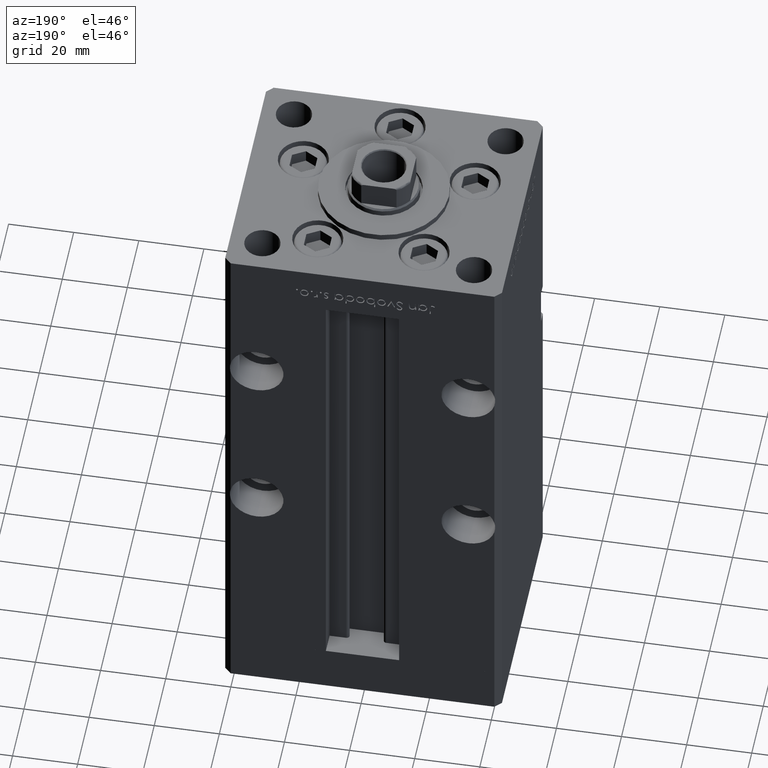
[diagram: clean part render]
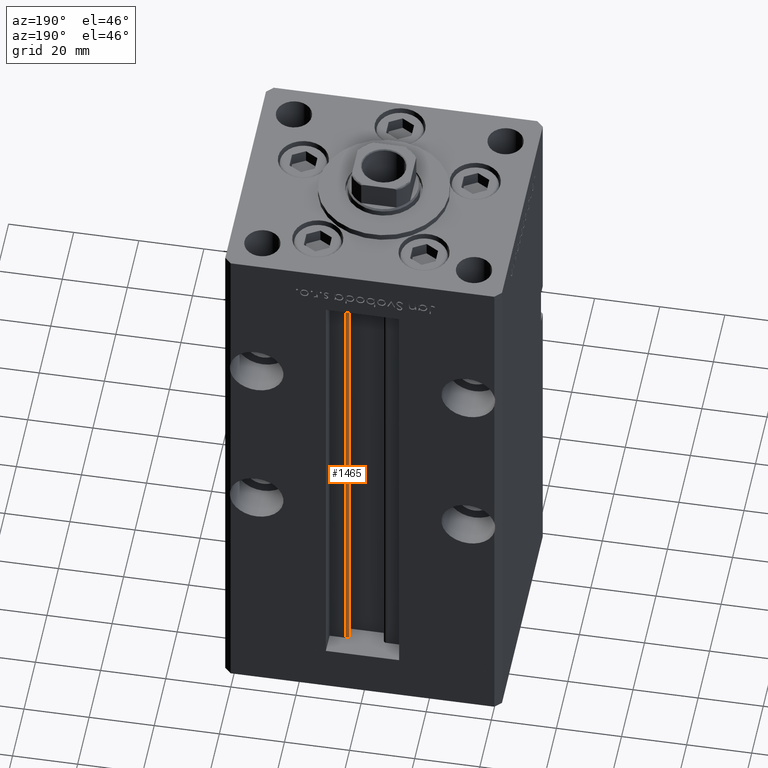
[diagram: same view with one face highlighted and labeled with its STEP entity id]
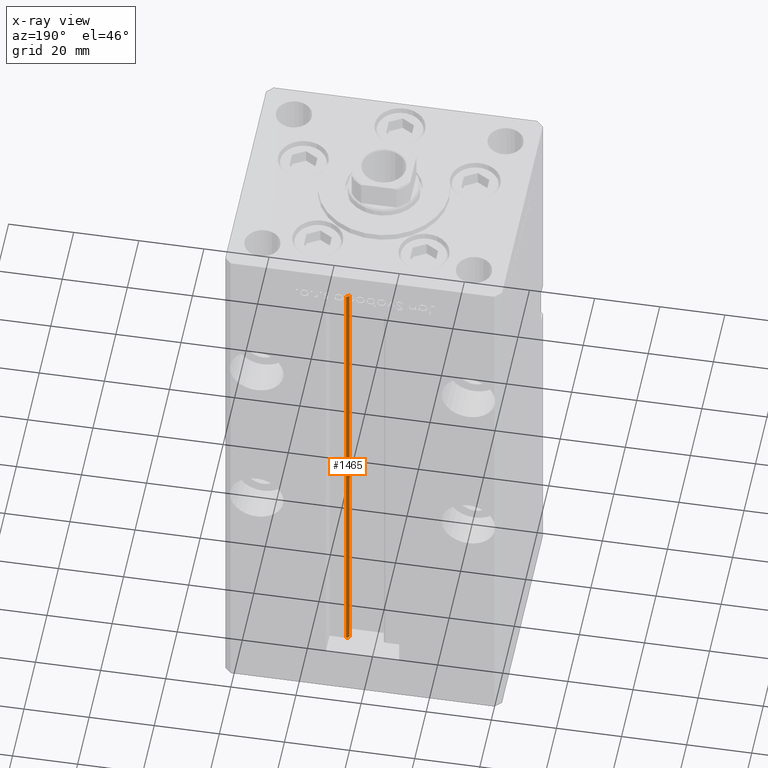
[diagram: x-ray of the same camera — body ghosted, the highlighted face saturated]
A machine part, auxiliary view. The second image highlights one B-rep face of the part: STEP entity #1465.
The next image is the same camera in x-ray: the body ghosted, the highlighted face saturated — about 0% of this face is hidden behind the body in this view.
In plain terms, the highlighted cylindrical surface (edge-blend (fillet) strip) has radius 0.9333 mm, axis along (0, 0, 1).
Its self-contained STEP definition (entity closure, byte-faithful):
#404 = DIRECTION ( 'NONE',  ( 1.000000000000000000, 0.000000000000000000, 0.000000000000000000 ) ) ;
#1465 = ADVANCED_FACE ( 'NONE', ( #42119 ), #13567, .T. ) ;
#4433 = CARTESIAN_POINT ( 'NONE',  ( 6.183333333333997928, 30.06666666666599852, 0.000000000000000000 ) ) ;
#4990 = CIRCLE ( 'NONE', #28206, 0.9333333333340008142 ) ;
#5508 = DIRECTION ( 'NONE',  ( -0.000000000000000000, -0.000000000000000000, 1.000000000000000000 ) ) ;
#8556 = CIRCLE ( 'NONE', #30038, 0.9333333333340008142 ) ;
#10664 = ORIENTED_EDGE ( 'NONE', *, *, #31417, .T. ) ;
#11480 = CARTESIAN_POINT ( 'NONE',  ( 6.183333333333997928, 30.06666666666599852, 0.000000000000000000 ) ) ;
#12262 = DIRECTION ( 'NONE',  ( -0.000000000000000000, -0.000000000000000000, -1.000000000000000000 ) ) ;
#13567 = CYLINDRICAL_SURFACE ( 'NONE', #20726, 0.9333333333340008142 ) ;
#15093 = CARTESIAN_POINT ( 'NONE',  ( 5.375042956467947164, 29.59999999999899245, 0.000000000000000000 ) ) ;
#15350 = CARTESIAN_POINT ( 'NONE',  ( 6.183333333333997928, 31.00000000000000000, 0.000000000000000000 ) ) ;
#16605 = EDGE_CURVE ( 'NONE', #16732, #37697, #4990, .T. ) ;
#16732 = VERTEX_POINT ( 'NONE', #29747 ) ;
#19787 = EDGE_CURVE ( 'NONE', #27971, #41438, #8556, .T. ) ;
#20726 = AXIS2_PLACEMENT_3D ( 'NONE', #4433, #5508, #404 ) ;
#21353 = CARTESIAN_POINT ( 'NONE',  ( 6.183333333333997928, 30.06666666666599852, 148.5000000000000000 ) ) ;
#25258 = EDGE_CURVE ( 'NONE', #37697, #41438, #48462, .T. ) ;
#25666 = DIRECTION ( 'NONE',  ( 0.000000000000000000, 0.000000000000000000, -1.000000000000000000 ) ) ;
#27971 = VERTEX_POINT ( 'NONE', #32797 ) ;
#28041 = EDGE_LOOP ( 'NONE', ( #47412, #29070, #10664, #34828 ) ) ;
#28206 = AXIS2_PLACEMENT_3D ( 'NONE', #11480, #12262, #48363 ) ;
#29070 = ORIENTED_EDGE ( 'NONE', *, *, #16605, .F. ) ;
#29747 = CARTESIAN_POINT ( 'NONE',  ( 5.375042956467947164, 29.59999999999899245, 0.000000000000000000 ) ) ;
#30038 = AXIS2_PLACEMENT_3D ( 'NONE', #21353, #25666, #42098 ) ;
#30981 = DIRECTION ( 'NONE',  ( -0.000000000000000000, -0.000000000000000000, 1.000000000000000000 ) ) ;
#31417 = EDGE_CURVE ( 'NONE', #16732, #27971, #51435, .T. ) ;
#32797 = CARTESIAN_POINT ( 'NONE',  ( 5.375042956467946276, 29.59999999999899600, 148.5000000000000000 ) ) ;
#34828 = ORIENTED_EDGE ( 'NONE', *, *, #19787, .T. ) ;
#36844 = DIRECTION ( 'NONE',  ( -0.000000000000000000, -0.000000000000000000, 1.000000000000000000 ) ) ;
#37067 = VECTOR ( 'NONE', #36844, 1000.000000000000000 ) ;
#37697 = VERTEX_POINT ( 'NONE', #42980 ) ;
#41438 = VERTEX_POINT ( 'NONE', #48808 ) ;
#42098 = DIRECTION ( 'NONE',  ( 1.000000000000000000, 0.000000000000000000, 0.000000000000000000 ) ) ;
#42119 = FACE_OUTER_BOUND ( 'NONE', #28041, .T. ) ;
#42980 = CARTESIAN_POINT ( 'NONE',  ( 6.183333333333997928, 31.00000000000000000, 0.000000000000000000 ) ) ;
#47412 = ORIENTED_EDGE ( 'NONE', *, *, #25258, .F. ) ;
#48363 = DIRECTION ( 'NONE',  ( 1.000000000000000000, 0.000000000000000000, 0.000000000000000000 ) ) ;
#48462 = LINE ( 'NONE', #15350, #37067 ) ;
#48808 = CARTESIAN_POINT ( 'NONE',  ( 6.183333333333997928, 31.00000000000000000, 148.5000000000000000 ) ) ;
#51435 = LINE ( 'NONE', #15093, #51761 ) ;
#51761 = VECTOR ( 'NONE', #30981, 1000.000000000000000 ) ;